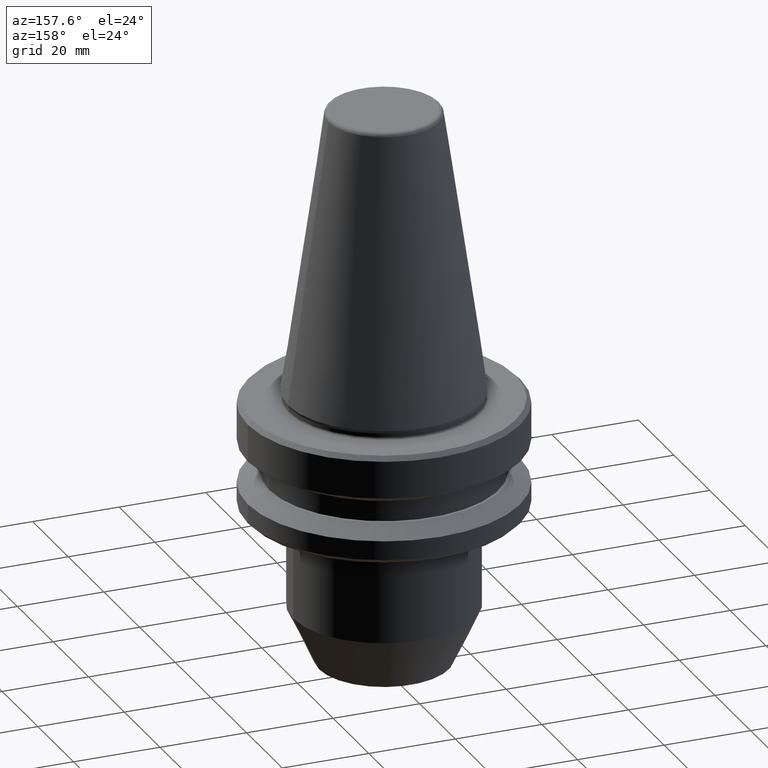
[diagram: clean part render]
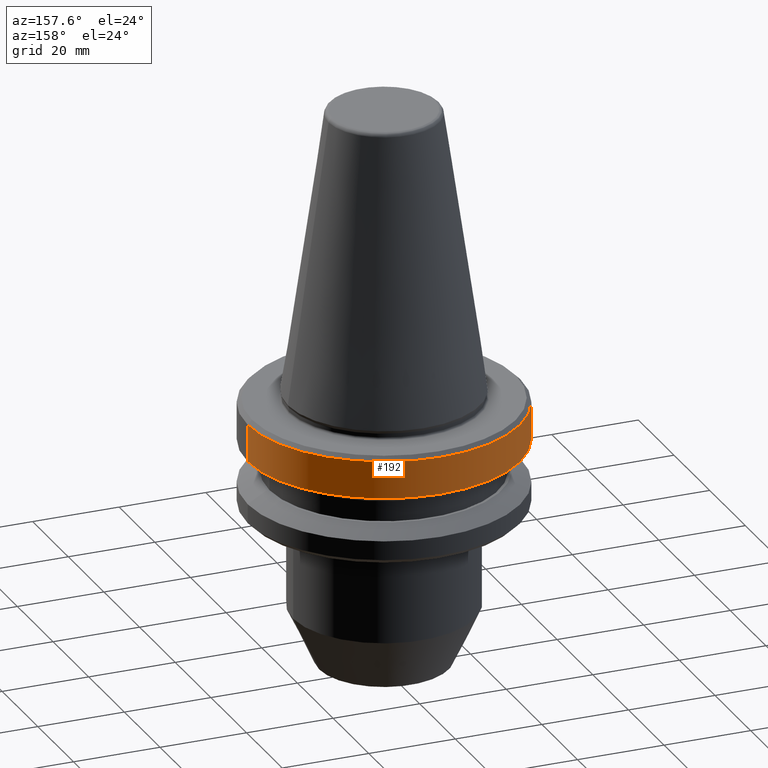
[diagram: same view with one face highlighted and labeled with its STEP entity id]
A machine part, auxiliary view. The second image highlights one B-rep face of the part: STEP entity #192.
In plain terms, the highlighted cylindrical surface (partial cylindrical patch) has radius 31.5 mm, axis along (-0, -0, 1).
Its self-contained STEP definition (entity closure, byte-faithful):
#6 = DIRECTION ( 'NONE',  ( 1.000000000000000000, 0.0000000000000000000, 0.0000000000000000000 ) ) ;
#20 = ORIENTED_EDGE ( 'NONE', *, *, #666, .F. ) ;
#32 = FACE_OUTER_BOUND ( 'NONE', #168, .T. ) ;
#34 = DIRECTION ( 'NONE',  ( -0.0000000000000000000, -0.0000000000000000000, 1.000000000000000000 ) ) ;
#60 = AXIS2_PLACEMENT_3D ( 'NONE', #826, #476, #1025 ) ;
#81 = LINE ( 'NONE', #650, #508 ) ;
#104 = CARTESIAN_POINT ( 'NONE',  ( 0.0000000000000000000, 0.0000000000000000000, 108.5744106306333100 ) ) ;
#118 = EDGE_CURVE ( 'NONE', #654, #616, #81, .T. ) ;
#168 = EDGE_LOOP ( 'NONE', ( #644, #335, #209, #20 ) ) ;
#192 = ADVANCED_FACE ( 'NONE', ( #32 ), #620, .T. ) ;
#202 = DIRECTION ( 'NONE',  ( 1.000000000000000000, 0.0000000000000000000, 0.0000000000000000000 ) ) ;
#209 = ORIENTED_EDGE ( 'NONE', *, *, #451, .F. ) ;
#255 = AXIS2_PLACEMENT_3D ( 'NONE', #260, #346, #202 ) ;
#260 = CARTESIAN_POINT ( 'NONE',  ( 0.0000000000000000000, 0.0000000000000000000, -2.999999999999780600 ) ) ;
#335 = ORIENTED_EDGE ( 'NONE', *, *, #118, .T. ) ;
#341 = VERTEX_POINT ( 'NONE', #780 ) ;
#346 = DIRECTION ( 'NONE',  ( -0.0000000000000000000, -0.0000000000000000000, 1.000000000000000000 ) ) ;
#376 = CARTESIAN_POINT ( 'NONE',  ( -31.50000000000008500, 3.857637417314172900E-015, -2.999999999999780600 ) ) ;
#436 = DIRECTION ( 'NONE',  ( -0.0000000000000000000, -0.0000000000000000000, 1.000000000000000000 ) ) ;
#442 = CIRCLE ( 'NONE', #60, 31.50000000000008500 ) ;
#451 = EDGE_CURVE ( 'NONE', #341, #616, #1041, .T. ) ;
#466 = VERTEX_POINT ( 'NONE', #868 ) ;
#476 = DIRECTION ( 'NONE',  ( -0.0000000000000000000, -0.0000000000000000000, 1.000000000000000000 ) ) ;
#481 = VECTOR ( 'NONE', #34, 1000.000000000000000 ) ;
#508 = VECTOR ( 'NONE', #635, 1000.000000000000000 ) ;
#616 = VERTEX_POINT ( 'NONE', #376 ) ;
#620 = CYLINDRICAL_SURFACE ( 'NONE', #1047, 31.50000000000008500 ) ;
#635 = DIRECTION ( 'NONE',  ( -0.0000000000000000000, -0.0000000000000000000, 1.000000000000000000 ) ) ;
#644 = ORIENTED_EDGE ( 'NONE', *, *, #972, .T. ) ;
#650 = CARTESIAN_POINT ( 'NONE',  ( -31.50000000000008500, 3.857637417314172900E-015, 108.5744106306333100 ) ) ;
#654 = VERTEX_POINT ( 'NONE', #1043 ) ;
#666 = EDGE_CURVE ( 'NONE', #466, #341, #725, .T. ) ;
#725 = LINE ( 'NONE', #881, #481 ) ;
#780 = CARTESIAN_POINT ( 'NONE',  ( 31.50000000000008500, 0.0000000000000000000, -2.999999999999780600 ) ) ;
#826 = CARTESIAN_POINT ( 'NONE',  ( 0.0000000000000000000, 0.0000000000000000000, -11.59985799368334900 ) ) ;
#868 = CARTESIAN_POINT ( 'NONE',  ( 31.50000000000008500, 0.0000000000000000000, -11.59985799368334900 ) ) ;
#881 = CARTESIAN_POINT ( 'NONE',  ( 31.50000000000008500, 0.0000000000000000000, 108.5744106306333100 ) ) ;
#972 = EDGE_CURVE ( 'NONE', #466, #654, #442, .T. ) ;
#1025 = DIRECTION ( 'NONE',  ( 1.000000000000000000, 0.0000000000000000000, 0.0000000000000000000 ) ) ;
#1041 = CIRCLE ( 'NONE', #255, 31.50000000000008500 ) ;
#1043 = CARTESIAN_POINT ( 'NONE',  ( -31.50000000000008500, 3.857637417314172900E-015, -11.59985799368334900 ) ) ;
#1047 = AXIS2_PLACEMENT_3D ( 'NONE', #104, #436, #6 ) ;